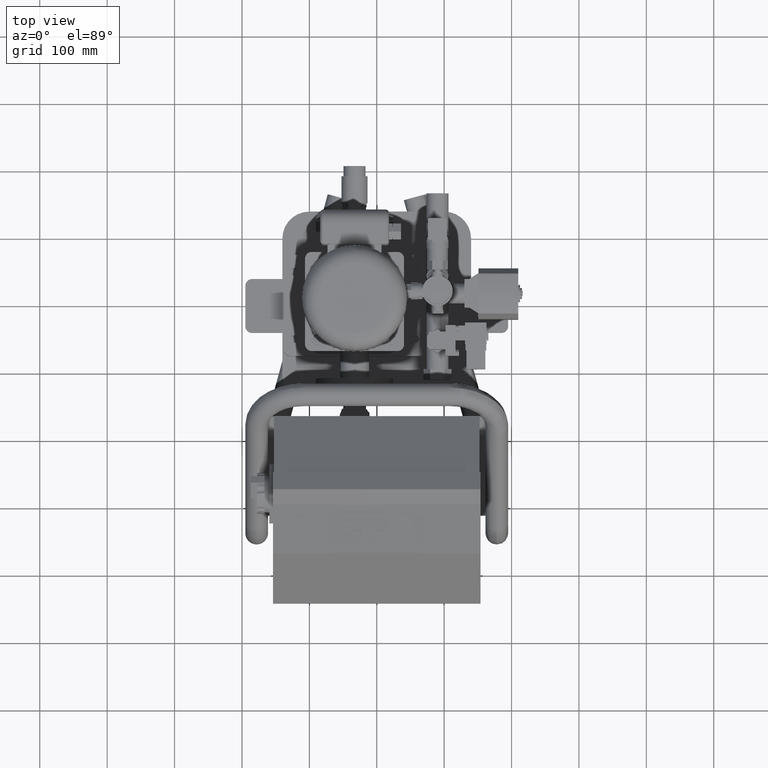
[diagram: clean part render]
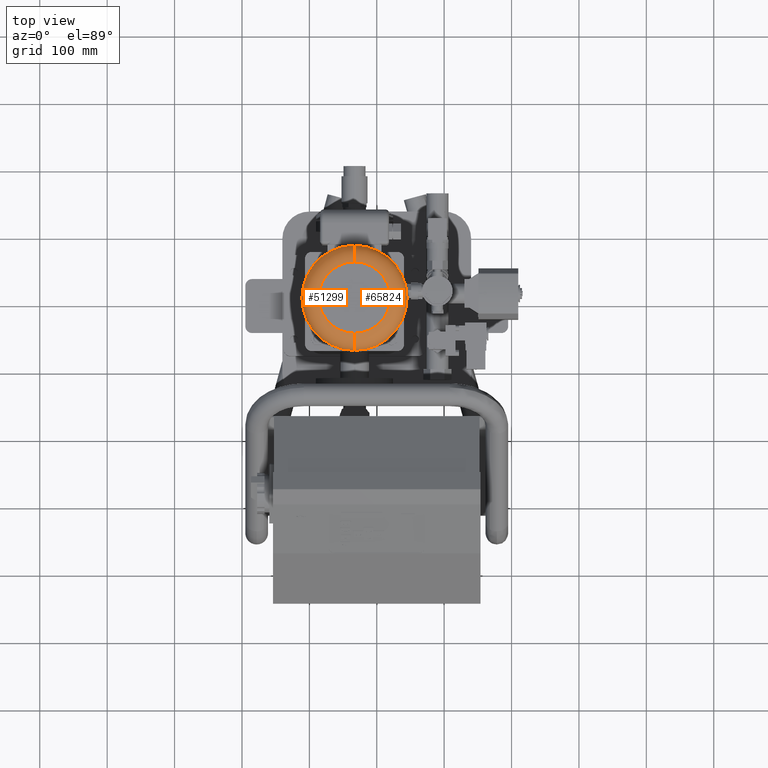
[diagram: same view with one multi-face feature highlighted, each face labeled with its STEP entity id]
A machine part, top view. The highlighted faces form ONE feature: a constant-radius fillet chain: 2 tangent blend faces with common blend radius 25 mm. The faces share edges in the B-rep.
Their STEP definitions:
[1] entity #65824 (Torus):
#51212=CARTESIAN_POINT('',(-32.999999999999915,77.999999999999943,736.0));
#51213=VERTEX_POINT('',#51212);
#51221=CARTESIAN_POINT('',(45.000000000000071,-6.399906E-014,736.0));
#51222=VERTEX_POINT('',#51221);
#51223=CARTESIAN_POINT('',(-32.999999999999929,-5.444650E-014,736.0));
#51224=DIRECTION('',(0.0,0.0,1.0));
#51225=DIRECTION('',(1.0,0.0,0.0));
#51226=AXIS2_PLACEMENT_3D('',#51223,#51224,#51225);
#51227=CIRCLE('',#51226,78.0);
#51228=EDGE_CURVE('',#51222,#51213,#51227,.T.);
#51253=CARTESIAN_POINT('',(-32.999999999999943,-53.000000000000064,761.0));
#51254=VERTEX_POINT('',#51253);
#51255=CARTESIAN_POINT('',(-32.999999999999950,-78.000000000000057,736.0));
#51256=VERTEX_POINT('',#51255);
#51257=CARTESIAN_POINT('',(-32.999999999999943,-53.000000000000064,736.0));
#51258=DIRECTION('',(1.0,0.0,0.0));
#51259=DIRECTION('',(0.0,-1.0,0.0));
#51260=AXIS2_PLACEMENT_3D('',#51257,#51258,#51259);
#51261=CIRCLE('',#51260,25.0);
#51262=EDGE_CURVE('',#51254,#51256,#51261,.T.);
#51273=CARTESIAN_POINT('',(-32.999999999999915,52.999999999999950,761.0));
#51274=VERTEX_POINT('',#51273);
#51282=CARTESIAN_POINT('',(-32.999999999999922,52.999999999999950,736.0));
#51283=DIRECTION('',(-1.0,0.0,0.0));
#51284=DIRECTION('',(0.0,1.0,0.0));
#51285=AXIS2_PLACEMENT_3D('',#51282,#51283,#51284);
#51286=CIRCLE('',#51285,25.0);
#51287=EDGE_CURVE('',#51274,#51213,#51286,.T.);
#65800=CARTESIAN_POINT('',(-32.999999999999929,-5.444650E-014,736.0));
#65801=DIRECTION('',(-4.499279E-032,-1.836970E-016,1.0));
#65802=DIRECTION('',(0.0,-1.0,0.0));
#65803=AXIS2_PLACEMENT_3D('',#65800,#65801,#65802);
#65804=TOROIDAL_SURFACE('',#65803,53.000000000000007,25.0);
#65805=ORIENTED_EDGE('',*,*,#51262,.T.);
#65806=CARTESIAN_POINT('',(-32.999999999999929,-5.444650E-014,736.0));
#65807=DIRECTION('',(0.0,0.0,1.0));
#65808=DIRECTION('',(1.0,0.0,0.0));
#65809=AXIS2_PLACEMENT_3D('',#65806,#65807,#65808);
#65810=CIRCLE('',#65809,78.0);
#65811=EDGE_CURVE('',#51256,#51222,#65810,.T.);
#65812=ORIENTED_EDGE('',*,*,#65811,.T.);
#65813=ORIENTED_EDGE('',*,*,#51228,.T.);
#65814=ORIENTED_EDGE('',*,*,#51287,.F.);
#65815=CARTESIAN_POINT('',(-32.999999999999929,-5.903892E-014,761.0));
#65816=DIRECTION('',(0.0,0.0,-1.0));
#65817=DIRECTION('',(1.0,0.0,0.0));
#65818=AXIS2_PLACEMENT_3D('',#65815,#65816,#65817);
#65819=CIRCLE('',#65818,53.000000000000007);
#65820=EDGE_CURVE('',#51274,#51254,#65819,.T.);
#65821=ORIENTED_EDGE('',*,*,#65820,.T.);
#65822=EDGE_LOOP('',(#65805,#65812,#65813,#65814,#65821));
#65823=FACE_OUTER_BOUND('',#65822,.T.);
#65824=ADVANCED_FACE('',(#65823),#65804,.T.);
[2] entity #51299 (Torus):
#51202=CARTESIAN_POINT('',(-110.999999999999930,-3.534201E-014,736.0));
#51203=VERTEX_POINT('',#51202);
#51212=CARTESIAN_POINT('',(-32.999999999999915,77.999999999999943,736.0));
#51213=VERTEX_POINT('',#51212);
#51214=CARTESIAN_POINT('',(-32.999999999999929,-5.444650E-014,736.0));
#51215=DIRECTION('',(0.0,0.0,1.0));
#51216=DIRECTION('',(1.0,0.0,0.0));
#51217=AXIS2_PLACEMENT_3D('',#51214,#51215,#51216);
#51218=CIRCLE('',#51217,78.0);
#51219=EDGE_CURVE('',#51213,#51203,#51218,.T.);
#51248=CARTESIAN_POINT('',(-32.999999999999929,-5.444650E-014,736.0));
#51249=DIRECTION('',(-4.499279E-032,-1.836970E-016,1.0));
#51250=DIRECTION('',(0.0,-1.0,0.0));
#51251=AXIS2_PLACEMENT_3D('',#51248,#51249,#51250);
#51252=TOROIDAL_SURFACE('',#51251,53.000000000000007,25.0);
#51253=CARTESIAN_POINT('',(-32.999999999999943,-53.000000000000064,761.0));
#51254=VERTEX_POINT('',#51253);
#51255=CARTESIAN_POINT('',(-32.999999999999950,-78.000000000000057,736.0));
#51256=VERTEX_POINT('',#51255);
#51257=CARTESIAN_POINT('',(-32.999999999999943,-53.000000000000064,736.0));
#51258=DIRECTION('',(1.0,0.0,0.0));
#51259=DIRECTION('',(0.0,-1.0,0.0));
#51260=AXIS2_PLACEMENT_3D('',#51257,#51258,#51259);
#51261=CIRCLE('',#51260,25.0);
#51262=EDGE_CURVE('',#51254,#51256,#51261,.T.);
#51263=ORIENTED_EDGE('',*,*,#51262,.F.);
#51264=CARTESIAN_POINT('',(-85.999999999999943,-3.307684E-014,761.0));
#51265=VERTEX_POINT('',#51264);
#51266=CARTESIAN_POINT('',(-32.999999999999929,-5.903892E-014,761.0));
#51267=DIRECTION('',(0.0,0.0,-1.0));
#51268=DIRECTION('',(1.0,0.0,0.0));
#51269=AXIS2_PLACEMENT_3D('',#51266,#51267,#51268);
#51270=CIRCLE('',#51269,53.000000000000007);
#51271=EDGE_CURVE('',#51254,#51265,#51270,.T.);
#51272=ORIENTED_EDGE('',*,*,#51271,.T.);
#51273=CARTESIAN_POINT('',(-32.999999999999915,52.999999999999950,761.0));
#51274=VERTEX_POINT('',#51273);
#51275=CARTESIAN_POINT('',(-32.999999999999929,-5.903892E-014,761.0));
#51276=DIRECTION('',(0.0,0.0,-1.0));
#51277=DIRECTION('',(1.0,0.0,0.0));
#51278=AXIS2_PLACEMENT_3D('',#51275,#51276,#51277);
#51279=CIRCLE('',#51278,53.000000000000007);
#51280=EDGE_CURVE('',#51265,#51274,#51279,.T.);
#51281=ORIENTED_EDGE('',*,*,#51280,.T.);
#51282=CARTESIAN_POINT('',(-32.999999999999922,52.999999999999950,736.0));
#51283=DIRECTION('',(-1.0,0.0,0.0));
#51284=DIRECTION('',(0.0,1.0,0.0));
#51285=AXIS2_PLACEMENT_3D('',#51282,#51283,#51284);
#51286=CIRCLE('',#51285,25.0);
#51287=EDGE_CURVE('',#51274,#51213,#51286,.T.);
#51288=ORIENTED_EDGE('',*,*,#51287,.T.);
#51289=ORIENTED_EDGE('',*,*,#51219,.T.);
#51290=CARTESIAN_POINT('',(-32.999999999999929,-5.444650E-014,736.0));
#51291=DIRECTION('',(0.0,0.0,1.0));
#51292=DIRECTION('',(1.0,0.0,0.0));
#51293=AXIS2_PLACEMENT_3D('',#51290,#51291,#51292);
#51294=CIRCLE('',#51293,78.0);
#51295=EDGE_CURVE('',#51203,#51256,#51294,.T.);
#51296=ORIENTED_EDGE('',*,*,#51295,.T.);
#51297=EDGE_LOOP('',(#51263,#51272,#51281,#51288,#51289,#51296));
#51298=FACE_OUTER_BOUND('',#51297,.T.);
#51299=ADVANCED_FACE('',(#51298),#51252,.T.);